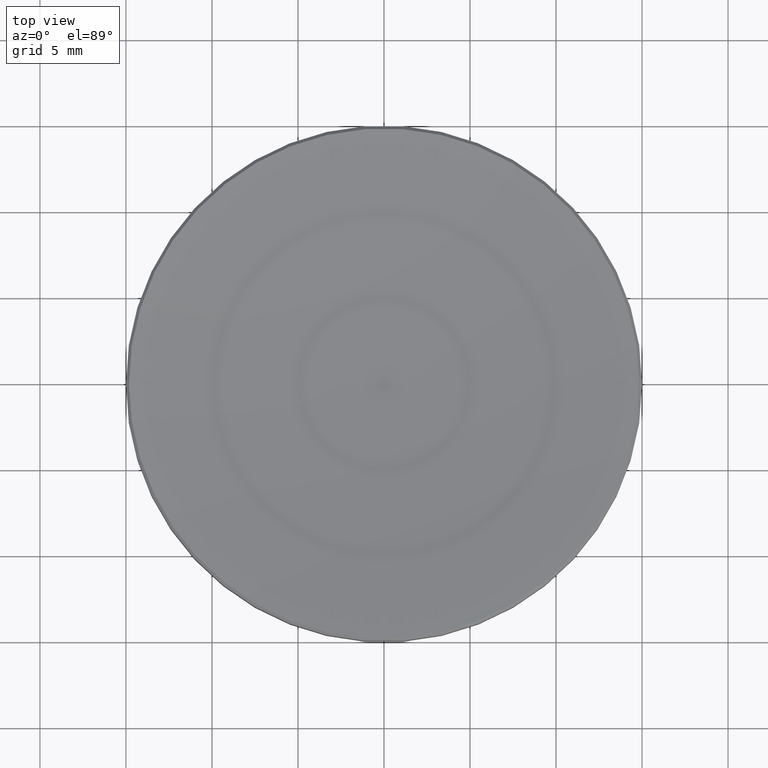
[diagram: clean part render]
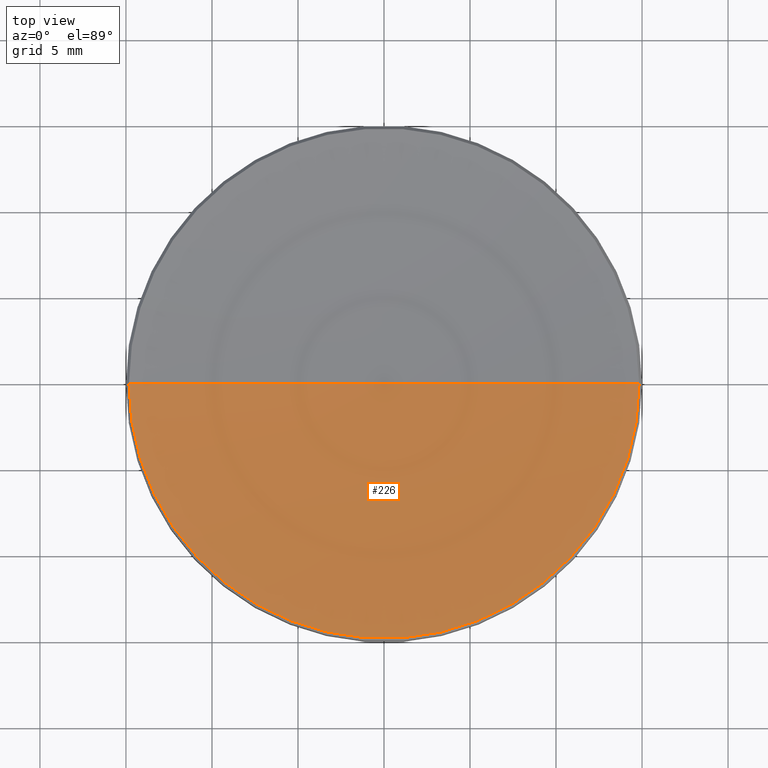
[diagram: same view with one face highlighted and labeled with its STEP entity id]
A machine part, top view. The second image highlights one B-rep face of the part: STEP entity #226.
In plain terms, the highlighted toroidal blend (fillet) surface has major radius 0.0335 mm and minor (blend) radius 103.28 mm.
Its self-contained STEP definition (entity closure, byte-faithful):
#2 = AXIS2_PLACEMENT_3D ( 'NONE', #102, #266, #223 ) ;
#6 = VERTEX_POINT ( 'NONE', #118 ) ;
#27 = CARTESIAN_POINT ( 'NONE',  ( 0.000000000000000000, 0.000000000000000000, 2.500000000000000000 ) ) ;
#31 = DIRECTION ( 'NONE',  ( 0.000000000000000000, 0.000000000000000000, -1.000000000000000000 ) ) ;
#34 = CIRCLE ( 'NONE', #195, 103.2800000000000011 ) ;
#46 = CIRCLE ( 'NONE', #2, 103.2800000000000011 ) ;
#48 = EDGE_CURVE ( 'NONE', #114, #224, #46, .T. ) ;
#50 = DIRECTION ( 'NONE',  ( -0.000000000000000000, -0.000000000000000000, 1.000000000000000000 ) ) ;
#68 = CARTESIAN_POINT ( 'NONE',  ( -0.03353293412618457009, 0.000000000000000000, 105.7799945562659616 ) ) ;
#87 = CARTESIAN_POINT ( 'NONE',  ( -14.82551889031213577, 1.815602425471937729E-15, 3.574481109687874358 ) ) ;
#92 = AXIS2_PLACEMENT_3D ( 'NONE', #260, #265, #218 ) ;
#96 = ORIENTED_EDGE ( 'NONE', *, *, #255, .T. ) ;
#102 = CARTESIAN_POINT ( 'NONE',  ( 0.03353293412618457009, -4.106600044365098363E-18, 105.7799945562659616 ) ) ;
#111 = DIRECTION ( 'NONE',  ( 1.000000000000000000, 0.000000000000000000, 0.000000000000000000 ) ) ;
#114 = VERTEX_POINT ( 'NONE', #27 ) ;
#118 = CARTESIAN_POINT ( 'NONE',  ( 14.82551889031213577, 0.000000000000000000, 3.574481109687874358 ) ) ;
#122 = TOROIDAL_SURFACE ( 'NONE', #209, -0.03353293412618457009, 103.2800000000000011 ) ;
#148 = CARTESIAN_POINT ( 'NONE',  ( 0.000000000000000000, 0.000000000000000000, 105.7799945562659616 ) ) ;
#167 = FACE_OUTER_BOUND ( 'NONE', #186, .T. ) ;
#183 = CIRCLE ( 'NONE', #92, 14.82551889031212333 ) ;
#186 = EDGE_LOOP ( 'NONE', ( #244, #221, #96 ) ) ;
#195 = AXIS2_PLACEMENT_3D ( 'NONE', #68, #212, #31 ) ;
#209 = AXIS2_PLACEMENT_3D ( 'NONE', #148, #50, #111 ) ;
#212 = DIRECTION ( 'NONE',  ( 0.000000000000000000, -1.000000000000000000, 0.000000000000000000 ) ) ;
#218 = DIRECTION ( 'NONE',  ( 1.000000000000000000, 0.000000000000000000, 0.000000000000000000 ) ) ;
#221 = ORIENTED_EDGE ( 'NONE', *, *, #48, .T. ) ;
#223 = DIRECTION ( 'NONE',  ( -1.000000000000000000, 1.224646799147353207E-16, 0.000000000000000000 ) ) ;
#224 = VERTEX_POINT ( 'NONE', #87 ) ;
#226 = ADVANCED_FACE ( 'NONE', ( #167 ), #122, .F. ) ;
#232 = EDGE_CURVE ( 'NONE', #114, #6, #34, .T. ) ;
#244 = ORIENTED_EDGE ( 'NONE', *, *, #232, .F. ) ;
#255 = EDGE_CURVE ( 'NONE', #224, #6, #183, .T. ) ;
#260 = CARTESIAN_POINT ( 'NONE',  ( 0.000000000000000000, 0.000000000000000000, 3.574481109687874358 ) ) ;
#265 = DIRECTION ( 'NONE',  ( -0.000000000000000000, -0.000000000000000000, 1.000000000000000000 ) ) ;
#266 = DIRECTION ( 'NONE',  ( 1.224646799147353207E-16, 1.000000000000000000, 0.000000000000000000 ) ) ;